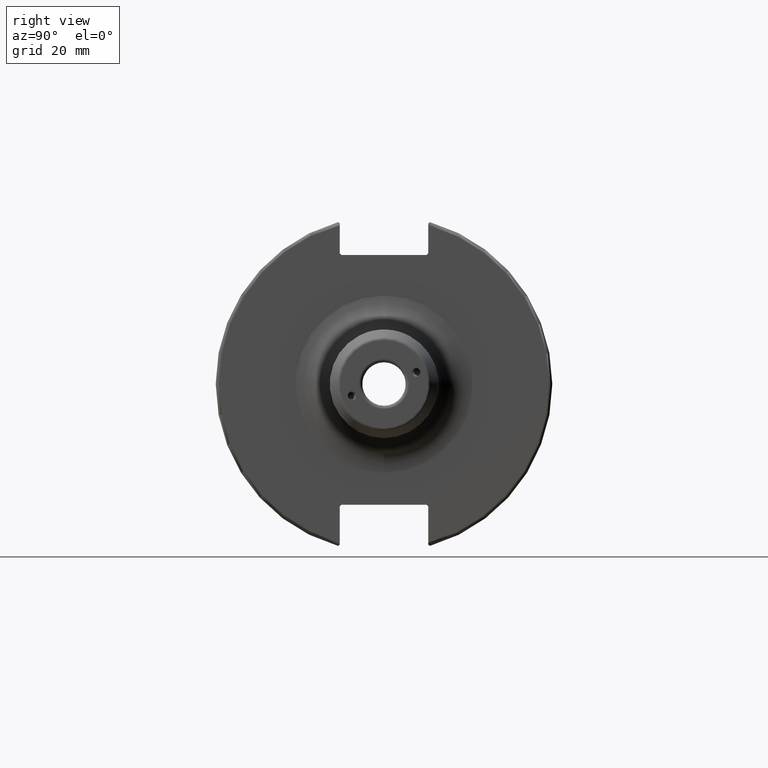
[diagram: clean part render]
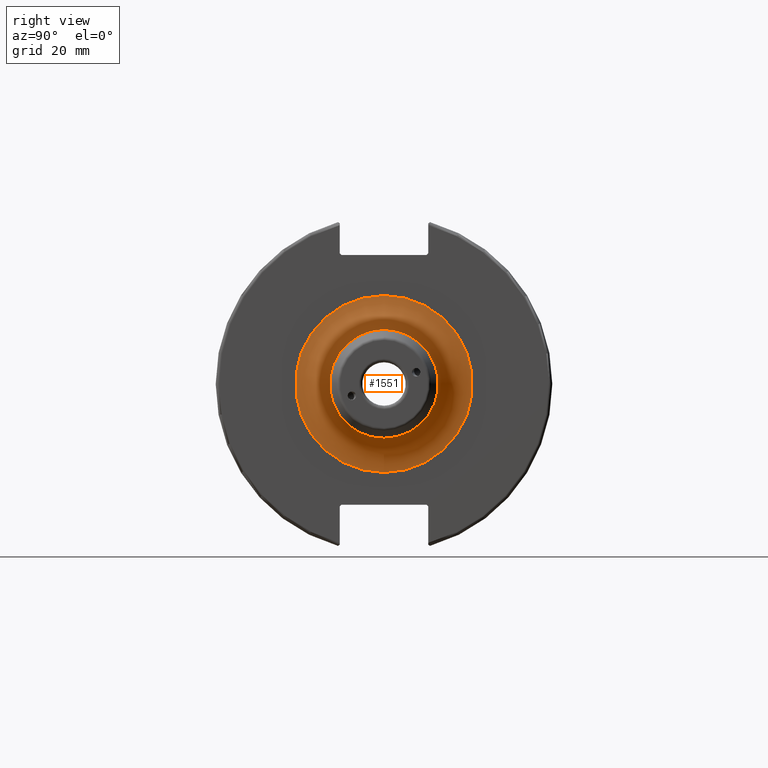
[diagram: same view with one face highlighted and labeled with its STEP entity id]
A machine part, right view. The second image highlights one B-rep face of the part: STEP entity #1551.
In plain terms, the highlighted toroidal blend (fillet) surface has major radius 25.875 mm and minor (blend) radius 10 mm.
Its self-contained STEP definition (entity closure, byte-faithful):
#34=TOROIDAL_SURFACE('',#1682,25.875,10.);
#132=CIRCLE('',#1681,15.875);
#133=CIRCLE('',#1683,10.);
#134=CIRCLE('',#1684,25.875);
#204=FACE_OUTER_BOUND('',#297,.T.);
#297=EDGE_LOOP('',(#1100,#1101,#1102,#1103));
#658=VERTEX_POINT('',#2492);
#659=VERTEX_POINT('',#2496);
#830=EDGE_CURVE('',#658,#658,#132,.T.);
#831=EDGE_CURVE('',#658,#659,#133,.T.);
#832=EDGE_CURVE('',#659,#659,#134,.T.);
#1100=ORIENTED_EDGE('',*,*,#830,.T.);
#1101=ORIENTED_EDGE('',*,*,#831,.T.);
#1102=ORIENTED_EDGE('',*,*,#832,.T.);
#1103=ORIENTED_EDGE('',*,*,#831,.F.);
#1551=ADVANCED_FACE('',(#204),#34,.F.);
#1681=AXIS2_PLACEMENT_3D('',#2494,#1891,#1892);
#1682=AXIS2_PLACEMENT_3D('',#2495,#1893,#1894);
#1683=AXIS2_PLACEMENT_3D('',#2497,#1895,#1896);
#1684=AXIS2_PLACEMENT_3D('',#2498,#1897,#1898);
#1891=DIRECTION('center_axis',(-1.,0.,0.));
#1892=DIRECTION('ref_axis',(0.,1.22464679914735E-16,-1.));
#1893=DIRECTION('center_axis',(-1.,0.,0.));
#1894=DIRECTION('ref_axis',(0.,0.,1.));
#1895=DIRECTION('center_axis',(0.,-1.,1.22464679914735E-16));
#1896=DIRECTION('ref_axis',(0.,-1.22464679914735E-16,-1.));
#1897=DIRECTION('center_axis',(1.,0.,0.));
#1898=DIRECTION('ref_axis',(0.,1.22464679914735E-16,-1.));
#2492=CARTESIAN_POINT('',(29.05,1.94412679364642E-15,-15.875));
#2494=CARTESIAN_POINT('Origin',(29.05,0.,0.));
#2495=CARTESIAN_POINT('Origin',(29.05,0.,0.));
#2496=CARTESIAN_POINT('',(19.05,-3.16877359279378E-15,-25.875));
#2497=CARTESIAN_POINT('Origin',(29.05,-3.16877359279378E-15,-25.875));
#2498=CARTESIAN_POINT('Origin',(19.05,0.,0.));